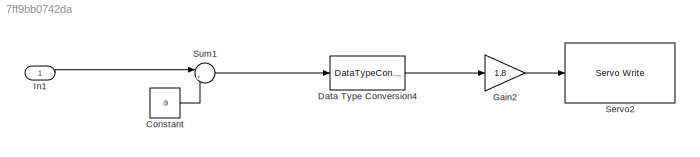
MODEL slx_7ff9bb0742da
KIND model
CONFIG AbsTol = auto
CONFIG EnableMultiTasking = off
CONFIG FixedStep = auto
CONFIG MaxStep = auto
CONFIG MinStep = auto
CONFIG RelTol = 1e-3
CONFIG SampleTimeConstraint = Unconstrained
CONFIG Solver = VariableStepAuto
CONFIG SolverName = VariableStepAuto
CONFIG StartTime = 0.0
CONFIG StopTime = inf
BLOCK [Constant] Constant
  Value = -9
BLOCK [DataTypeConversion] Data Type Conversion4
  OutDataTypeStr = int8
  RndMeth = Floor
  SaturateOnIntegerOverflow = off
BLOCK [Gain] Gain2
  Gain = 1.8
  OutDataTypeStr = Inherit: Inherit via internal rule
  ParamDataTypeStr = Inherit: Inherit via internal rule
  SaturateOnIntegerOverflow = off
BLOCK [Inport] In1
  IconDisplay = Port number
BLOCK [Reference] Servo2  REF=frdmtfcshieldlib/Servo Write
  Ports = [1]
  SourceBlock = frdmtfcshieldlib/Servo Write
  SourceProductBaseCode = EC_FREEDOM_BOARD
  SourceProductName = Simulink Coder Support Package for NXP FRDM-KL25Z Board
  SourceType = Servo Write
BLOCK [Sum] Sum1
  IconShape = round
  InputSameDT = off
  Inputs = |+-
  OutDataTypeStr = Inherit: Inherit via internal rule
  Ports = [2, 1]
  SaturateOnIntegerOverflow = off
LINE Constant:1 -> Sum1:2
LINE Data Type Conversion4:1 -> Gain2:1
LINE Gain2:1 -> Servo2:1
LINE In1:1 -> Sum1:1
LINE Sum1:1 -> Data Type Conversion4:1
